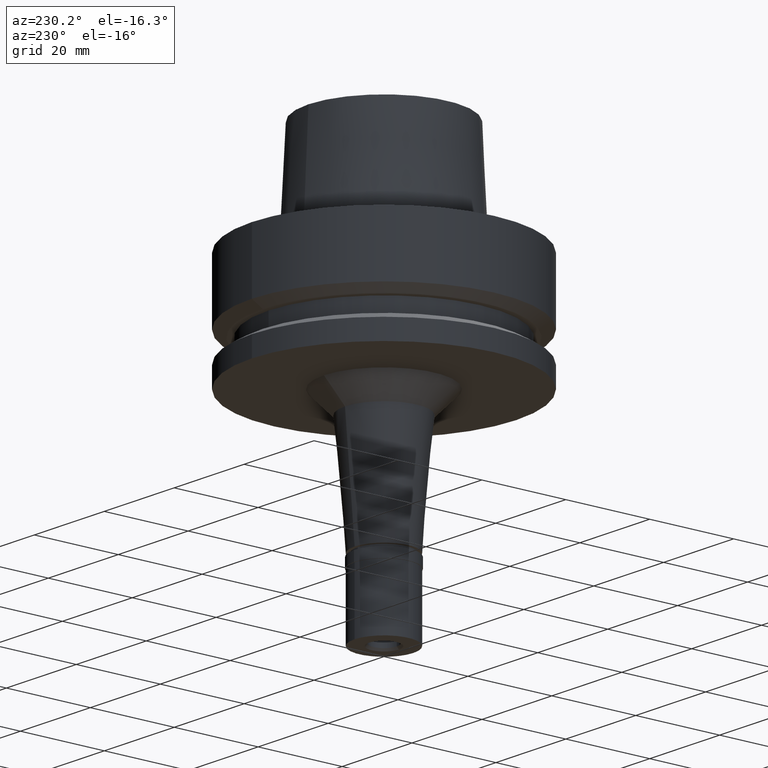
[diagram: clean part render]
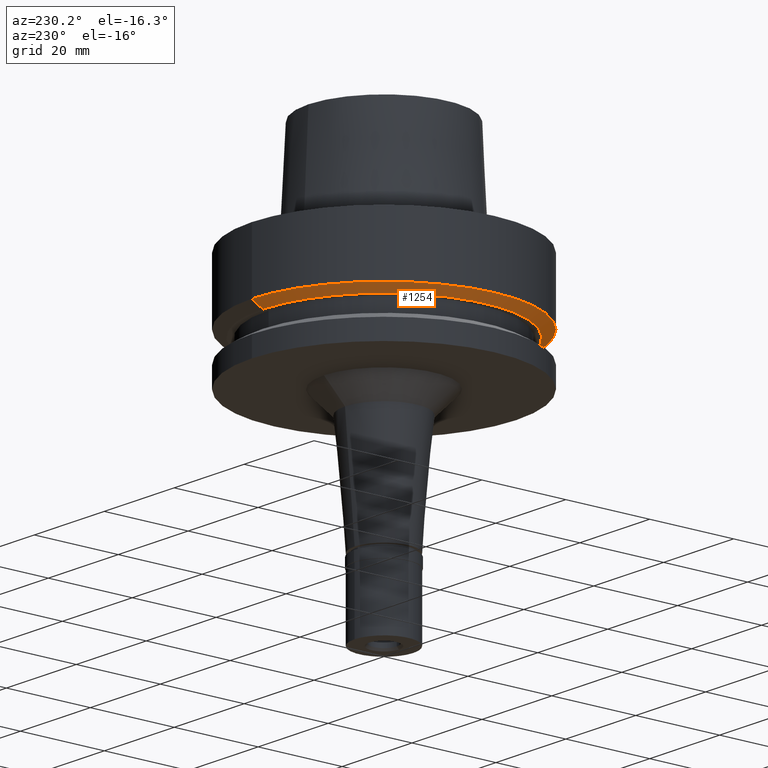
[diagram: same view with one face highlighted and labeled with its STEP entity id]
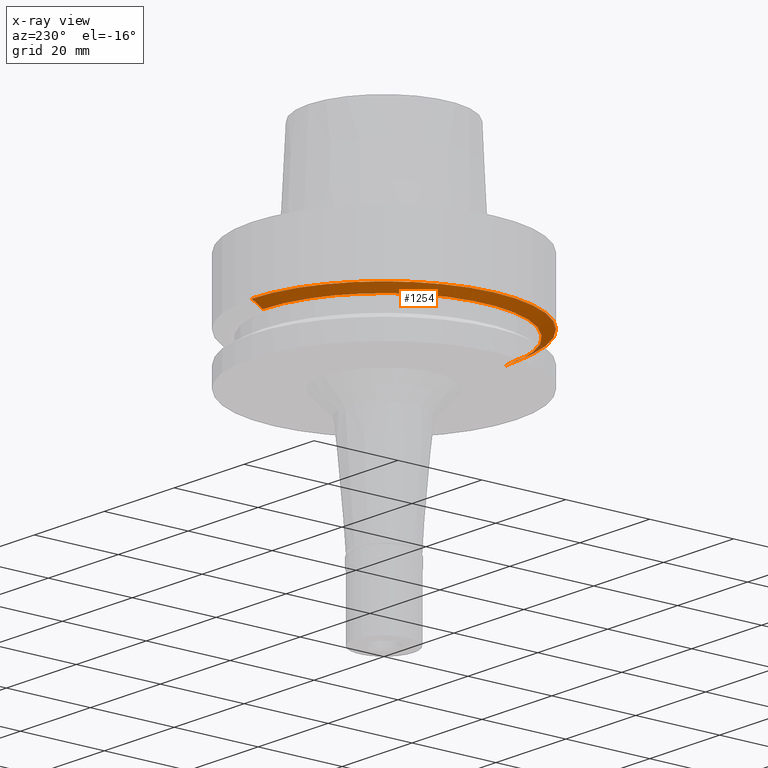
[diagram: x-ray of the same camera — body ghosted, the highlighted face saturated]
A machine part, auxiliary view. The second image highlights one B-rep face of the part: STEP entity #1254.
The next image is the same camera in x-ray: the body ghosted, the highlighted face saturated — about 1% of this face is hidden behind the body in this view.
In plain terms, the highlighted conical surface has half-angle 60 deg.
Its self-contained STEP definition (entity closure, byte-faithful):
#132 = EDGE_CURVE ( 'NONE', #1897, #1566, #2415, .T. ) ;
#185 = AXIS2_PLACEMENT_3D ( 'NONE', #616, #1472, #1486 ) ;
#226 = CIRCLE ( 'NONE', #185, 31.50000000000000000 ) ;
#267 = CARTESIAN_POINT ( 'NONE',  ( 0.0000000000000000000, 1.036372656197999898E-14, -16.12500000000000000 ) ) ;
#442 = EDGE_CURVE ( 'NONE', #1897, #1909, #226, .T. ) ;
#489 = DIRECTION ( 'NONE',  ( 0.0000000000000000000, 0.0000000000000000000, 1.000000000000000000 ) ) ;
#494 = CARTESIAN_POINT ( 'NONE',  ( 0.0000000000000000000, 28.89759526419000224, -16.12500000000000000 ) ) ;
#522 = CARTESIAN_POINT ( 'NONE',  ( 0.0000000000000000000, -28.89759526419000224, -16.12500000000000000 ) ) ;
#585 = FACE_OUTER_BOUND ( 'NONE', #1061, .T. ) ;
#597 = ORIENTED_EDGE ( 'NONE', *, *, #1986, .T. ) ;
#616 = CARTESIAN_POINT ( 'NONE',  ( 0.0000000000000000000, 1.036372656197999898E-14, -14.62250092523999889 ) ) ;
#690 = VERTEX_POINT ( 'NONE', #522 ) ;
#769 = CIRCLE ( 'NONE', #2278, 28.89759526419000224 ) ;
#821 = CONICAL_SURFACE ( 'NONE', #2429, 30.19879763209999979, 1.047197551196400456 ) ;
#1023 = DIRECTION ( 'NONE',  ( 0.0000000000000000000, -0.8660254037843856390, -0.5000000000000918154 ) ) ;
#1061 = EDGE_LOOP ( 'NONE', ( #597, #1534, #1369, #1901 ) ) ;
#1072 = DIRECTION ( 'NONE',  ( 0.0000000000000000000, 0.8660254037843856390, -0.5000000000000918154 ) ) ;
#1106 = VECTOR ( 'NONE', #1072, 1000.000000000000000 ) ;
#1254 = ADVANCED_FACE ( 'NONE', ( #585 ), #821, .T. ) ;
#1369 = ORIENTED_EDGE ( 'NONE', *, *, #442, .F. ) ;
#1455 = CARTESIAN_POINT ( 'NONE',  ( 0.0000000000000000000, -31.50000000000000000, -14.62250092523999889 ) ) ;
#1472 = DIRECTION ( 'NONE',  ( 0.0000000000000000000, 0.0000000000000000000, 1.000000000000000000 ) ) ;
#1486 = DIRECTION ( 'NONE',  ( 0.0000000000000000000, 1.000000000000000000, 0.0000000000000000000 ) ) ;
#1534 = ORIENTED_EDGE ( 'NONE', *, *, #1941, .F. ) ;
#1566 = VERTEX_POINT ( 'NONE', #494 ) ;
#1615 = CARTESIAN_POINT ( 'NONE',  ( 0.0000000000000000000, 1.036372656197999898E-14, -15.37375046262000033 ) ) ;
#1658 = CARTESIAN_POINT ( 'NONE',  ( 0.0000000000000000000, -31.50000000000000000, -14.62250092523999889 ) ) ;
#1716 = VECTOR ( 'NONE', #1023, 1000.000000000000000 ) ;
#1834 = DIRECTION ( 'NONE',  ( 0.0000000000000000000, 0.0000000000000000000, 1.000000000000000000 ) ) ;
#1897 = VERTEX_POINT ( 'NONE', #2310 ) ;
#1900 = LINE ( 'NONE', #1455, #1106 ) ;
#1901 = ORIENTED_EDGE ( 'NONE', *, *, #132, .T. ) ;
#1909 = VERTEX_POINT ( 'NONE', #1658 ) ;
#1941 = EDGE_CURVE ( 'NONE', #1909, #690, #1900, .T. ) ;
#1985 = DIRECTION ( 'NONE',  ( 0.0000000000000000000, 1.000000000000000000, 0.0000000000000000000 ) ) ;
#1986 = EDGE_CURVE ( 'NONE', #1566, #690, #769, .T. ) ;
#2032 = CARTESIAN_POINT ( 'NONE',  ( 0.0000000000000000000, 31.50000000000000000, -14.62250092523999889 ) ) ;
#2151 = DIRECTION ( 'NONE',  ( 0.0000000000000000000, 1.000000000000000000, 0.0000000000000000000 ) ) ;
#2278 = AXIS2_PLACEMENT_3D ( 'NONE', #267, #489, #2151 ) ;
#2310 = CARTESIAN_POINT ( 'NONE',  ( 0.0000000000000000000, 31.50000000000000000, -14.62250092523999889 ) ) ;
#2415 = LINE ( 'NONE', #2032, #1716 ) ;
#2429 = AXIS2_PLACEMENT_3D ( 'NONE', #1615, #1834, #1985 ) ;